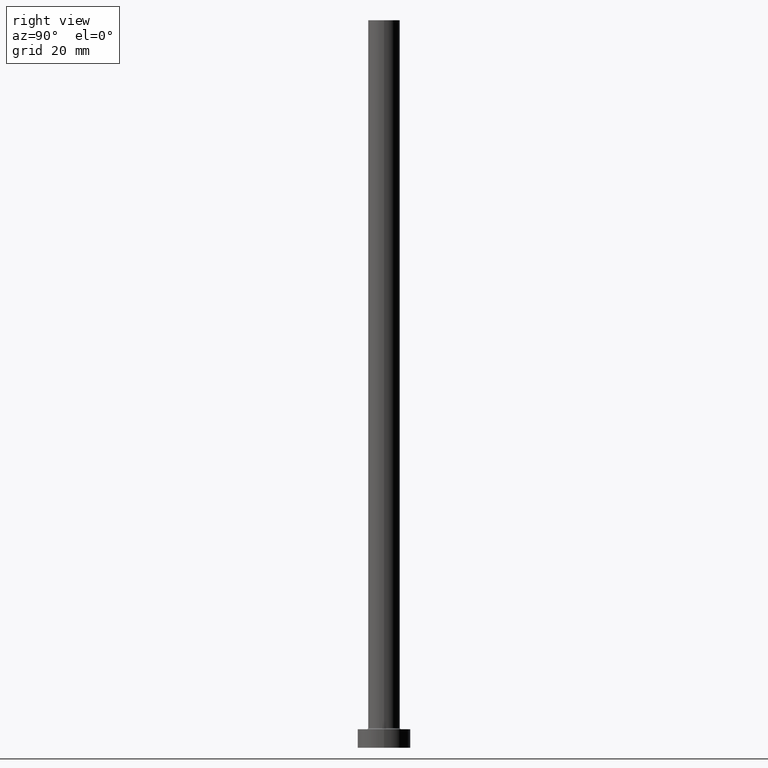
[diagram: clean part render]
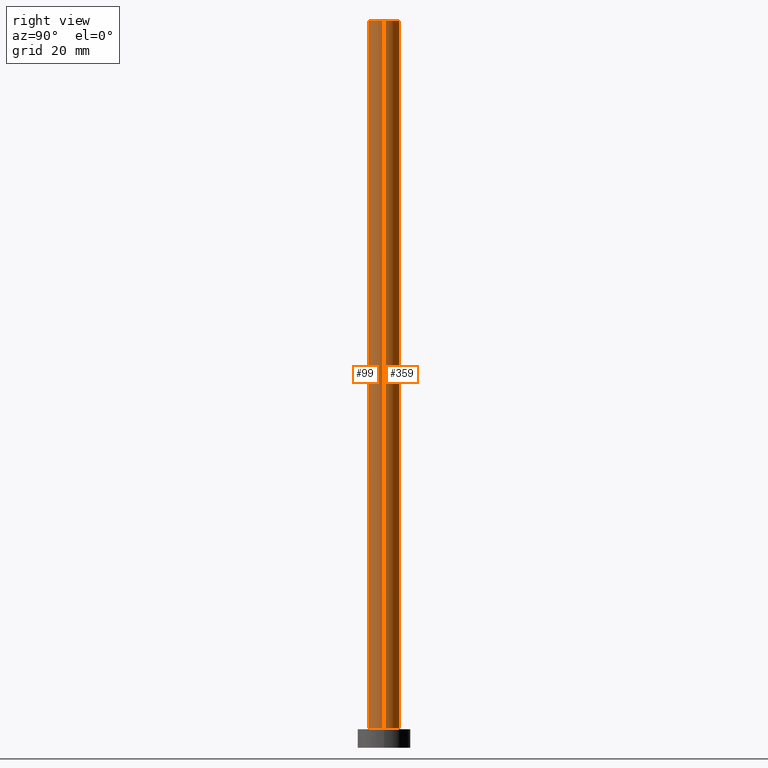
[diagram: same view with one multi-face feature highlighted, each face labeled with its STEP entity id]
A machine part, right view. The highlighted faces form ONE feature: a constant-radius fillet chain: 2 tangent blend faces with common blend radius 6 mm. The faces share edges in the B-rep.
Their STEP definitions:
[1] entity #99 (Cylinder):
#2 = CARTESIAN_POINT ( 'NONE',  ( 6.000000000000000888, 7.347880794884120722E-16, 275.0000000000000000 ) ) ;
#35 = CARTESIAN_POINT ( 'NONE',  ( 0.000000000000000000, 0.000000000000000000, 275.0000000000000000 ) ) ;
#42 = CARTESIAN_POINT ( 'NONE',  ( 0.000000000000000000, 0.000000000000000000, 275.0000000000000000 ) ) ;
#52 = VERTEX_POINT ( 'NONE', #346 ) ;
#53 = CIRCLE ( 'NONE', #222, 6.000000000000000888 ) ;
#58 = EDGE_CURVE ( 'NONE', #133, #52, #281, .T. ) ;
#71 = CARTESIAN_POINT ( 'NONE',  ( -6.000000000000000888, 0.000000000000000000, 275.0000000000000000 ) ) ;
#74 = CARTESIAN_POINT ( 'NONE',  ( 6.000000000000000888, 7.347880794884120722E-16, 275.0000000000000000 ) ) ;
#76 = CARTESIAN_POINT ( 'NONE',  ( 0.000000000000000000, 0.000000000000000000, 7.500000000000007105 ) ) ;
#82 = ORIENTED_EDGE ( 'NONE', *, *, #58, .F. ) ;
#87 = ORIENTED_EDGE ( 'NONE', *, *, #179, .T. ) ;
#96 = VERTEX_POINT ( 'NONE', #71 ) ;
#99 = ADVANCED_FACE ( 'NONE', ( #327 ), #142, .T. ) ;
#102 = EDGE_LOOP ( 'NONE', ( #82, #386, #87, #317 ) ) ;
#111 = LINE ( 'NONE', #247, #318 ) ;
#113 = EDGE_CURVE ( 'NONE', #96, #133, #426, .T. ) ;
#133 = VERTEX_POINT ( 'NONE', #74 ) ;
#140 = DIRECTION ( 'NONE',  ( 1.000000000000000000, 0.000000000000000000, 0.000000000000000000 ) ) ;
#141 = AXIS2_PLACEMENT_3D ( 'NONE', #35, #459, #140 ) ;
#142 = CYLINDRICAL_SURFACE ( 'NONE', #173, 6.000000000000000888 ) ;
#145 = VECTOR ( 'NONE', #362, 1000.000000000000000 ) ;
#173 = AXIS2_PLACEMENT_3D ( 'NONE', #42, #321, #360 ) ;
#176 = EDGE_CURVE ( 'NONE', #198, #52, #53, .T. ) ;
#179 = EDGE_CURVE ( 'NONE', #96, #198, #111, .T. ) ;
#198 = VERTEX_POINT ( 'NONE', #460 ) ;
#222 = AXIS2_PLACEMENT_3D ( 'NONE', #76, #323, #429 ) ;
#247 = CARTESIAN_POINT ( 'NONE',  ( -6.000000000000000888, 0.000000000000000000, 275.0000000000000000 ) ) ;
#281 = LINE ( 'NONE', #2, #145 ) ;
#317 = ORIENTED_EDGE ( 'NONE', *, *, #176, .T. ) ;
#318 = VECTOR ( 'NONE', #395, 1000.000000000000000 ) ;
#321 = DIRECTION ( 'NONE',  ( -0.000000000000000000, -0.000000000000000000, -1.000000000000000000 ) ) ;
#323 = DIRECTION ( 'NONE',  ( 0.000000000000000000, 0.000000000000000000, 1.000000000000000000 ) ) ;
#327 = FACE_OUTER_BOUND ( 'NONE', #102, .T. ) ;
#346 = CARTESIAN_POINT ( 'NONE',  ( 6.000000000000000888, 7.347880794884120722E-16, 7.500000000000007105 ) ) ;
#360 = DIRECTION ( 'NONE',  ( -1.000000000000000000, 0.000000000000000000, 0.000000000000000000 ) ) ;
#362 = DIRECTION ( 'NONE',  ( -0.000000000000000000, -0.000000000000000000, -1.000000000000000000 ) ) ;
#386 = ORIENTED_EDGE ( 'NONE', *, *, #113, .F. ) ;
#395 = DIRECTION ( 'NONE',  ( -0.000000000000000000, -0.000000000000000000, -1.000000000000000000 ) ) ;
#426 = CIRCLE ( 'NONE', #141, 6.000000000000000888 ) ;
#429 = DIRECTION ( 'NONE',  ( 1.000000000000000000, 0.000000000000000000, 0.000000000000000000 ) ) ;
#459 = DIRECTION ( 'NONE',  ( 0.000000000000000000, 0.000000000000000000, 1.000000000000000000 ) ) ;
#460 = CARTESIAN_POINT ( 'NONE',  ( -6.000000000000000888, 0.000000000000000000, 7.500000000000007105 ) ) ;
[2] entity #359 (Cylinder):
#2 = CARTESIAN_POINT ( 'NONE',  ( 6.000000000000000888, 7.347880794884120722E-16, 275.0000000000000000 ) ) ;
#9 = CIRCLE ( 'NONE', #319, 6.000000000000000888 ) ;
#24 = DIRECTION ( 'NONE',  ( 1.000000000000000000, 0.000000000000000000, 0.000000000000000000 ) ) ;
#47 = CARTESIAN_POINT ( 'NONE',  ( 0.000000000000000000, 0.000000000000000000, 275.0000000000000000 ) ) ;
#52 = VERTEX_POINT ( 'NONE', #346 ) ;
#54 = FACE_OUTER_BOUND ( 'NONE', #98, .T. ) ;
#58 = EDGE_CURVE ( 'NONE', #133, #52, #281, .T. ) ;
#63 = ORIENTED_EDGE ( 'NONE', *, *, #436, .T. ) ;
#71 = CARTESIAN_POINT ( 'NONE',  ( -6.000000000000000888, 0.000000000000000000, 275.0000000000000000 ) ) ;
#74 = CARTESIAN_POINT ( 'NONE',  ( 6.000000000000000888, 7.347880794884120722E-16, 275.0000000000000000 ) ) ;
#96 = VERTEX_POINT ( 'NONE', #71 ) ;
#98 = EDGE_LOOP ( 'NONE', ( #373, #164, #63, #420 ) ) ;
#111 = LINE ( 'NONE', #247, #318 ) ;
#133 = VERTEX_POINT ( 'NONE', #74 ) ;
#145 = VECTOR ( 'NONE', #362, 1000.000000000000000 ) ;
#161 = DIRECTION ( 'NONE',  ( -1.000000000000000000, 0.000000000000000000, 0.000000000000000000 ) ) ;
#164 = ORIENTED_EDGE ( 'NONE', *, *, #58, .T. ) ;
#166 = CARTESIAN_POINT ( 'NONE',  ( 0.000000000000000000, 0.000000000000000000, 7.500000000000007105 ) ) ;
#179 = EDGE_CURVE ( 'NONE', #96, #198, #111, .T. ) ;
#198 = VERTEX_POINT ( 'NONE', #460 ) ;
#215 = CIRCLE ( 'NONE', #283, 6.000000000000000888 ) ;
#247 = CARTESIAN_POINT ( 'NONE',  ( -6.000000000000000888, 0.000000000000000000, 275.0000000000000000 ) ) ;
#267 = CARTESIAN_POINT ( 'NONE',  ( 0.000000000000000000, 0.000000000000000000, 275.0000000000000000 ) ) ;
#281 = LINE ( 'NONE', #2, #145 ) ;
#283 = AXIS2_PLACEMENT_3D ( 'NONE', #47, #364, #330 ) ;
#305 = EDGE_CURVE ( 'NONE', #133, #96, #215, .T. ) ;
#318 = VECTOR ( 'NONE', #395, 1000.000000000000000 ) ;
#319 = AXIS2_PLACEMENT_3D ( 'NONE', #166, #422, #24 ) ;
#330 = DIRECTION ( 'NONE',  ( 1.000000000000000000, 0.000000000000000000, 0.000000000000000000 ) ) ;
#337 = DIRECTION ( 'NONE',  ( -0.000000000000000000, -0.000000000000000000, -1.000000000000000000 ) ) ;
#339 = AXIS2_PLACEMENT_3D ( 'NONE', #267, #337, #161 ) ;
#346 = CARTESIAN_POINT ( 'NONE',  ( 6.000000000000000888, 7.347880794884120722E-16, 7.500000000000007105 ) ) ;
#359 = ADVANCED_FACE ( 'NONE', ( #54 ), #399, .T. ) ;
#362 = DIRECTION ( 'NONE',  ( -0.000000000000000000, -0.000000000000000000, -1.000000000000000000 ) ) ;
#364 = DIRECTION ( 'NONE',  ( 0.000000000000000000, 0.000000000000000000, 1.000000000000000000 ) ) ;
#373 = ORIENTED_EDGE ( 'NONE', *, *, #305, .F. ) ;
#395 = DIRECTION ( 'NONE',  ( -0.000000000000000000, -0.000000000000000000, -1.000000000000000000 ) ) ;
#399 = CYLINDRICAL_SURFACE ( 'NONE', #339, 6.000000000000000888 ) ;
#420 = ORIENTED_EDGE ( 'NONE', *, *, #179, .F. ) ;
#422 = DIRECTION ( 'NONE',  ( 0.000000000000000000, 0.000000000000000000, 1.000000000000000000 ) ) ;
#436 = EDGE_CURVE ( 'NONE', #52, #198, #9, .T. ) ;
#460 = CARTESIAN_POINT ( 'NONE',  ( -6.000000000000000888, 0.000000000000000000, 7.500000000000007105 ) ) ;